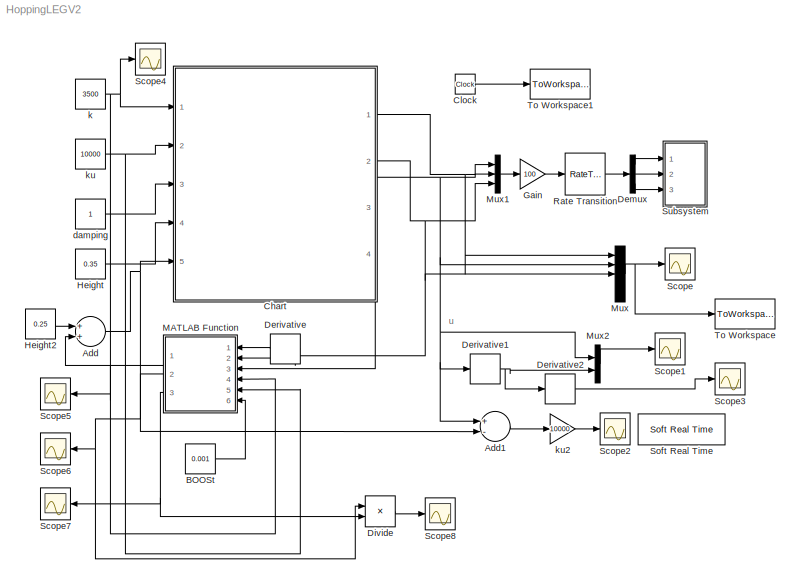
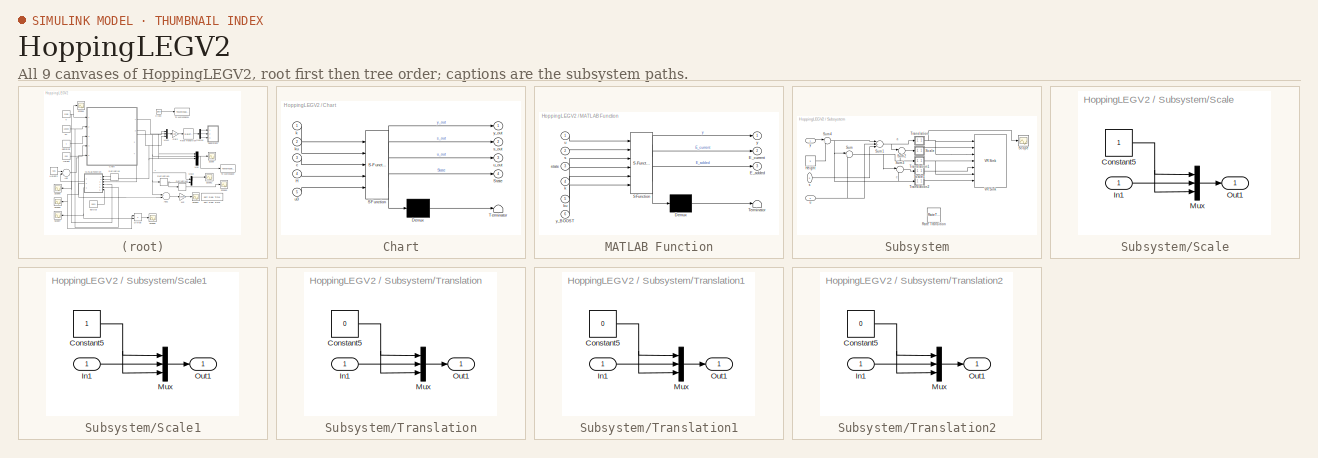
[diagram: thumbnail index - all 9 canvases of the model, root first then tree order]
MODEL HoppingLEGV2
KIND model
BLOCK [Sum] Add
  InputSameDT = off
  OutDataTypeStr = Inherit: Inherit via internal rule
  Ports = [2, 1]
  SID = 160
  SaturateOnIntegerOverflow = off
BLOCK [Sum] Add1
  InputSameDT = off
  Inputs = +-
  OutDataTypeStr = Inherit: Inherit via internal rule
  Ports = [2, 1]
  SID = 168
  SaturateOnIntegerOverflow = off
BLOCK [Constant] BOOSt
  SID = 181
  Value = 0.001
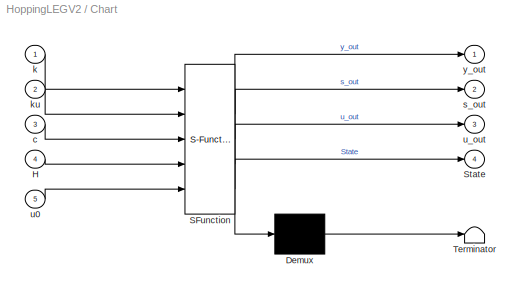
BLOCK [SubSystem] Chart
  ErrorFcn = Stateflow.Translate.translate
  FunctionWithSeparateData = off
  MaskDescription = Stateflow diagram
  MaskDisplay = plot(sf('Private','sfblk','xIcon'),sf('Private','sfblk','yIcon'));text(0.5,0,sf('Private', 'sfblk', 'tIcon'),'HorizontalAl','Center','VerticalAl','Bottom');
  MaskHideContents = off
  MaskIconFrame = off
  MaskIconOpaque = off
  MaskIconRotate = none
  MaskIconUnits = autoscale
  MaskPortRotate = default
  MaskSelfModifiable = on
  MaskType = Stateflow
  MinAlgLoopOccurrences = off
  Opaque = off
  PermitHierarchicalResolution = ExplicitOnly
  Ports = [5, 4]
  PropExecContextOutsideSubsystem = off
  RTWSystemCode = Auto
  RequestExecContextInheritance = off
  SID = 1
  TreatAsAtomicUnit = on
BLOCK [Demux] Chart/ Demux 
  Outputs = 1
  Ports = [1, 1]
  SID = 1::14
BLOCK [S-Function] Chart/ SFunction 
  EnableBusSupport = on
  FunctionName = sf_sfun
  PortCounts = [5 5]
  Ports = [5, 5]
  SID = 1::13
  Tag = Stateflow S-Function HoppingLEGV2 1
BLOCK [Terminator] Chart/ Terminator 
  SID = 1::18
BLOCK [Inport] Chart/H
  IconDisplay = Port number
  Port = 4
  SID = 1::28
BLOCK [Outport] Chart/State
  IconDisplay = Port number
  Port = 4
  SID = 1::30
BLOCK [Inport] Chart/c
  IconDisplay = Port number
  Port = 3
  SID = 1::27
BLOCK [Inport] Chart/k
  IconDisplay = Port number
  SID = 1::29
BLOCK [Inport] Chart/ku
  IconDisplay = Port number
  Port = 2
  SID = 1::36
BLOCK [Outport] Chart/s_out
  IconDisplay = Port number
  Port = 2
  SID = 1::31
BLOCK [Inport] Chart/u0
  IconDisplay = Port number
  Port = 5
  SID = 1::39
BLOCK [Outport] Chart/u_out
  IconDisplay = Port number
  Port = 3
  SID = 1::37
BLOCK [Outport] Chart/y_out
  IconDisplay = Port number
  SID = 1::20
BLOCK [Clock] Clock
  Decimation = 10
  SID = 14
BLOCK [Demux] Demux
  DisplayOption = bar
  Outputs = 3
  Ports = [1, 3]
  SID = 158
BLOCK [Derivative] Derivative
  SID = 152
BLOCK [Derivative] Derivative1
  SID = 163
BLOCK [Derivative] Derivative2
  SID = 174
BLOCK [Product] Divide
  InputSameDT = off
  Inputs = */
  OutDataTypeStr = Inherit: Inherit via internal rule
  Ports = [2, 1]
  RndMeth = Floor
  SID = 184
  SaturateOnIntegerOverflow = off
BLOCK [Gain] Gain
  Gain = 100
  OutDataTypeStr = Inherit: Inherit via internal rule
  ParamDataTypeStr = Inherit: Inherit via internal rule
  SID = 159
  SaturateOnIntegerOverflow = off
BLOCK [Constant] Height
  SID = 21
  Value = 0.35
BLOCK [Constant] Height2
  SID = 153
  Value = 0.25
BLOCK [SubSystem] MATLAB Function
  ErrorFcn = Stateflow.Translate.translate
  FunctionWithSeparateData = off
  MaskDescription = Embedded MATLAB block
  MaskDisplay = bgColor = Simulink.Root.ColorString2Rgb(get_param(gcbh, 'BackgroundColor')); image(imread('private/eml_membrane_16.png','png','BackgroundColor',bgColor(1:3)),'center'); disp([10 10 'fcn']);
  MaskHideContents = off
  MaskIconFrame = on
  MaskIconOpaque = off
  MaskIconRotate = none
  MaskIconUnits = normalized
  MaskPortRotate = default
  MaskSelfModifiable = on
  MaskType = Stateflow
  MinAlgLoopOccurrences = off
  Opaque = off
  PermitHierarchicalResolution = ExplicitOnly
  Ports = [6, 3]
  PropExecContextOutsideSubsystem = off
  RTWSystemCode = Auto
  RequestExecContextInheritance = off
  SID = 151
  TreatAsAtomicUnit = on
BLOCK [Demux] MATLAB Function/ Demux 
  Outputs = 1
  Ports = [1, 1]
  SID = 151::15
BLOCK [S-Function] MATLAB Function/ SFunction 
  EnableBusSupport = on
  FunctionName = sf_sfun
  PortCounts = [6 4]
  Ports = [6, 4]
  SID = 151::14
  Tag = Stateflow S-Function HoppingLEGV2 2
BLOCK [Terminator] MATLAB Function/ Terminator 
  SID = 151::17
BLOCK [Outport] MATLAB Function/E_added
  IconDisplay = Port number
  Port = 3
  SID = 151::21
BLOCK [Outport] MATLAB Function/E_current
  IconDisplay = Port number
  Port = 2
  SID = 151::19
BLOCK [Inport] MATLAB Function/k
  IconDisplay = Port number
  Port = 4
  SID = 151::22
BLOCK [Inport] MATLAB Function/ku
  IconDisplay = Port number
  Port = 5
  SID = 151::24
BLOCK [Inport] MATLAB Function/s
  IconDisplay = Port number
  Port = 2
  SID = 151::18
BLOCK [Inport] MATLAB Function/state
  IconDisplay = Port number
  Port = 3
  SID = 151::20
BLOCK [Inport] MATLAB Function/u
  IconDisplay = Port number
  SID = 151::1
BLOCK [Outport] MATLAB Function/y
  IconDisplay = Port number
  SID = 151::5
BLOCK [Inport] MATLAB Function/y_BOOST
  IconDisplay = Port number
  Port = 6
  SID = 151::23
BLOCK [Mux] Mux
  DisplayOption = bar
  Inputs = 5
  Ports = [5, 1]
  SID = 109
BLOCK [Mux] Mux1
  DisplayOption = bar
  Inputs = 3
  Ports = [3, 1]
  SID = 157
BLOCK [Mux] Mux2
  DisplayOption = bar
  Inputs = 2
  Ports = [2, 1]
  SID = 162
BLOCK [RateTransition] Rate Transition
  OutPortSampleTime = 1
  SID = 156
BLOCK [Scope] Scope
  DataFormat = StructureWithTime
  Floating = off
  NumInputPorts = 1
  Ports = [1]
  SID = 2
  SampleTime = 0
  TimeRange = 3
  YMax = 0.55
  YMin = 0
BLOCK [Scope] Scope1
  DataFormat = StructureWithTime
  Floating = off
  NumInputPorts = 1
  Ports = [1]
  SID = 82
  SampleTime = 0
  SaveName = ScopeData1
  TimeRange = 1.036496350364963
  YMax = 1.75
  YMin = -2
BLOCK [Scope] Scope2
  DataFormat = StructureWithTime
  Floating = off
  NumInputPorts = 1
  Ports = [1]
  SID = 173
  SampleTime = 0
  SaveName = ScopeData3
  TimeRange = 3
  YMax = 50
  YMin = -80
BLOCK [Scope] Scope3
  DataFormat = StructureWithTime
  Floating = off
  NumInputPorts = 1
  Ports = [1]
  SID = 175
  SampleTime = 0
  SaveName = ScopeData4
  TimeRange = 1.036496350364963
  YMax = 1.75
  YMin = -2
BLOCK [Scope] Scope4
  DataFormat = StructureWithTime
  Floating = off
  NumInputPorts = 1
  Ports = [1]
  SID = 177
  SampleTime = 0
  SaveName = ScopeData5
  TimeRange = 3
  YMax = 3000
  YMin = 2980
BLOCK [Scope] Scope5
  DataFormat = StructureWithTime
  Floating = off
  NumInputPorts = 1
  Ports = [1]
  SID = 180
  SampleTime = 0
  SaveName = ScopeData6
  TimeRange = 1.036496350364963
  YMax = 1.75
  YMin = -2
BLOCK [Scope] Scope6
  DataFormat = StructureWithTime
  Floating = off
  NumInputPorts = 1
  Ports = [1]
  SID = 182
  SampleTime = 0
  SaveName = ScopeData7
  TimeRange = 1.036496350364963
  YMax = 0.65
  YMin = 2.77556e-017
BLOCK [Scope] Scope7
  DataFormat = StructureWithTime
  Floating = off
  NumInputPorts = 1
  Ports = [1]
  SID = 183
  SampleTime = 0
  SaveName = ScopeData8
  TimeRange = 1.036496350364963
  YMax = 0.045
  YMin = 0.045
BLOCK [Scope] Scope8
  DataFormat = StructureWithTime
  Floating = off
  NumInputPorts = 1
  Ports = [1]
  SID = 185
  SampleTime = 0
  SaveName = ScopeData9
  TimeRange = 1.036496350364963
  YMax = 240
  YMin = 20
BLOCK [Reference] Soft Real Time  REF=utility/Soft Real Time  (lib defined in slx_8818c3a16fdf)
  Ports = []
  SID = 165
  SourceBlock = utility/Soft Real Time
  x = 1
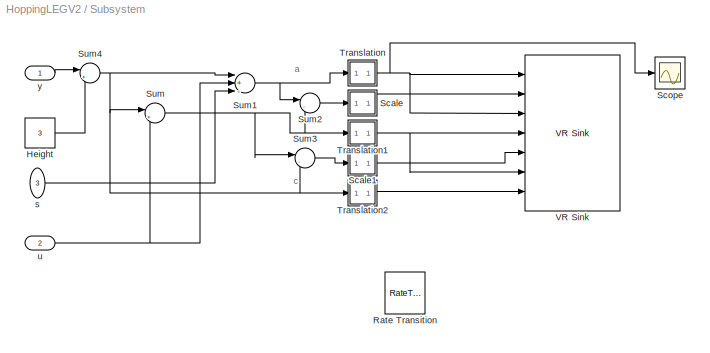
BLOCK [SubSystem] Subsystem
  FunctionWithSeparateData = off
  MaskHideContents = off
  MinAlgLoopOccurrences = off
  Opaque = off
  Ports = [3]
  PropExecContextOutsideSubsystem = off
  RTWSystemCode = Auto
  RequestExecContextInheritance = off
  SID = 112
BLOCK [Constant] Subsystem/Height
  SID = 149
  Value = 3
BLOCK [RateTransition] Subsystem/Rate Transition
  OutPortSampleTime = 0.1
  SID = 155
BLOCK [SubSystem] Subsystem/Scale
  FunctionWithSeparateData = off
  MaskHideContents = off
  MinAlgLoopOccurrences = off
  Opaque = off
  Ports = [1, 1]
  PropExecContextOutsideSubsystem = off
  RTWSystemCode = Auto
  RequestExecContextInheritance = off
  SID = 116
BLOCK [Constant] Subsystem/Scale/Constant5
  SID = 118
BLOCK [Inport] Subsystem/Scale/In1
  IconDisplay = Port number
  SID = 117
BLOCK [Mux] Subsystem/Scale/Mux
  DisplayOption = bar
  Inputs = 3
  Ports = [3, 1]
  SID = 119
BLOCK [Outport] Subsystem/Scale/Out1
  IconDisplay = Port number
  SID = 120
BLOCK [SubSystem] Subsystem/Scale1
  FunctionWithSeparateData = off
  MaskHideContents = off
  MinAlgLoopOccurrences = off
  Opaque = off
  Ports = [1, 1]
  PropExecContextOutsideSubsystem = off
  RTWSystemCode = Auto
  RequestExecContextInheritance = off
  SID = 121
BLOCK [Constant] Subsystem/Scale1/Constant5
  SID = 123
BLOCK [Inport] Subsystem/Scale1/In1
  IconDisplay = Port number
  SID = 122
BLOCK [Mux] Subsystem/Scale1/Mux
  DisplayOption = bar
  Inputs = 3
  Ports = [3, 1]
  SID = 124
BLOCK [Outport] Subsystem/Scale1/Out1
  IconDisplay = Port number
  SID = 125
BLOCK [Scope] Subsystem/Scope
  DataFormat = StructureWithTime
  Floating = off
  NumInputPorts = 1
  Ports = [1]
  SID = 147
  SampleTime = 0
  SaveName = ScopeData2
  TimeRange = 3
  YMax = 4e-015
  YMin = -4e-015
BLOCK [Sum] Subsystem/Sum
  IconShape = round
  InputSameDT = off
  Inputs = |+-
  OutDataTypeStr = Inherit: Inherit via internal rule
  Ports = [2, 1]
  SID = 126
  SaturateOnIntegerOverflow = off
BLOCK [Sum] Subsystem/Sum1
  InputSameDT = off
  Inputs = |+--
  OutDataTypeStr = Inherit: Inherit via internal rule
  Ports = [3, 1]
  SID = 127
  SaturateOnIntegerOverflow = off
BLOCK [Sum] Subsystem/Sum2
  IconShape = round
  InputSameDT = off
  Inputs = |-+
  OutDataTypeStr = Inherit: Inherit via internal rule
  Ports = [2, 1]
  SID = 128
  SaturateOnIntegerOverflow = off
BLOCK [Sum] Subsystem/Sum3
  IconShape = round
  InputSameDT = off
  Inputs = |-+
  OutDataTypeStr = Inherit: Inherit via internal rule
  Ports = [2, 1]
  SID = 129
  SaturateOnIntegerOverflow = off
BLOCK [Sum] Subsystem/Sum4
  IconShape = round
  InputSameDT = off
  Inputs = |++
  OutDataTypeStr = Inherit: Inherit via internal rule
  Ports = [2, 1]
  SID = 148
  SaturateOnIntegerOverflow = off
BLOCK [SubSystem] Subsystem/Translation
  FunctionWithSeparateData = off
  MaskHideContents = off
  MinAlgLoopOccurrences = off
  Opaque = off
  Ports = [1, 1]
  PropExecContextOutsideSubsystem = off
  RTWSystemCode = Auto
  RequestExecContextInheritance = off
  SID = 130
BLOCK [Constant] Subsystem/Translation/Constant5
  SID = 132
  Value = 0
BLOCK [Inport] Subsystem/Translation/In1
  IconDisplay = Port number
  SID = 131
BLOCK [Mux] Subsystem/Translation/Mux
  DisplayOption = bar
  Inputs = 3
  Ports = [3, 1]
  SID = 133
BLOCK [Outport] Subsystem/Translation/Out1
  IconDisplay = Port number
  SID = 134
BLOCK [SubSystem] Subsystem/Translation1
  FunctionWithSeparateData = off
  MaskHideContents = off
  MinAlgLoopOccurrences = off
  Opaque = off
  Ports = [1, 1]
  PropExecContextOutsideSubsystem = off
  RTWSystemCode = Auto
  RequestExecContextInheritance = off
  SID = 135
BLOCK [Constant] Subsystem/Translation1/Constant5
  SID = 137
  Value = 0
BLOCK [Inport] Subsystem/Translation1/In1
  IconDisplay = Port number
  SID = 136
BLOCK [Mux] Subsystem/Translation1/Mux
  DisplayOption = bar
  Inputs = 3
  Ports = [3, 1]
  SID = 138
BLOCK [Outport] Subsystem/Translation1/Out1
  IconDisplay = Port number
  SID = 139
BLOCK [SubSystem] Subsystem/Translation2
  FunctionWithSeparateData = off
  MaskHideContents = off
  MinAlgLoopOccurrences = off
  Opaque = off
  Ports = [1, 1]
  PropExecContextOutsideSubsystem = off
  RTWSystemCode = Auto
  RequestExecContextInheritance = off
  SID = 140
BLOCK [Constant] Subsystem/Translation2/Constant5
  SID = 142
  Value = 0
BLOCK [Inport] Subsystem/Translation2/In1
  IconDisplay = Port number
  SID = 141
BLOCK [Mux] Subsystem/Translation2/Mux
  DisplayOption = bar
  Inputs = 3
  Ports = [3, 1]
  SID = 143
BLOCK [Outport] Subsystem/Translation2/Out1
  IconDisplay = Port number
  SID = 144
BLOCK [Reference] Subsystem/VR Sink  REF=vrlib/VR Sink
  AutoView = off
  FieldsWritten = ALFA.translation.3.1.1.double#Opruga.scale.3.1.1.double#Opruga.translation.3.1.1.double#MASS2.translation.3.1.1.double#PRISMATIC.scale.3.1.1.double#PRISMATIC.translation.3.1.1.double#MASS1.translation.3.1.1.double
  FigureProperties = {'Position', 'Name', 'Viewpoint', 'CameraBound', 'CameraDirection', 'CameraPosition', 'CameraUpVector', 'ZoomFactor', 'Antialiasing', 'Headlight', 'Lighting', 'NavPanel', 'StatusBar', 'ToolBar', 'Textures', 'Transparency', 'Wireframe', 'NavZones', 'NavMode', 'NavSpeed', 'Record2DCompressMethod', 'Record2DCompressQuality', 'Record2D', 'Record2DFileName', 'Record2DFPS'; [5.0000000000000000e+000  9.2...<+515ch>
  Ports = [7]
  RemoteChange = off
  RemoteView = on
  SID = 145
  SampleTime = 1
  SourceBlock = vrlib/VR Sink
  SourceType = Virtual Reality Sink
  VideoDimensions = []
  ViewEnable = on
  WorldFileName = skakac2.WRL
BLOCK [Inport] Subsystem/s
  IconDisplay = Port number
  Port = 3
  SID = 115
BLOCK [Inport] Subsystem/u
  IconDisplay = Port number
  Port = 2
  SID = 114
BLOCK [Inport] Subsystem/y
  IconDisplay = Port number
  SID = 113
BLOCK [ToWorkspace] To Workspace
  MaxDataPoints = inf
  Ports = [1]
  SID = 178
  SampleTime = Td
  SaveFormat = Array
  VariableName = output
BLOCK [ToWorkspace] To Workspace1
  MaxDataPoints = inf
  Ports = [1]
  SID = 15
  SampleTime = Td
  SaveFormat = Array
  VariableName = t
BLOCK [Constant] damping
  SID = 20
BLOCK [Constant] k
  SID = 179
  Value = 3500
BLOCK [Constant] ku
  SID = 83
  Value = 10000
BLOCK [Gain] ku2
  Gain = 10000
  OutDataTypeStr = Inherit: Inherit via internal rule
  ParamDataTypeStr = Inherit: Inherit via internal rule
  SID = 169
  SaturateOnIntegerOverflow = off
ANNOTATION (root): u
ANNOTATION Subsystem: a
ANNOTATION Subsystem: c
LINE Add1:1 -> ku2:1
NET Add:1 -> Add1:2, Chart:5
LINE BOOSt:1 -> MATLAB Function:6
LINE Chart/ Demux :1 -> Chart/ Terminator :1
LINE Chart/ SFunction :1 -> Chart/ Demux :1
LINE Chart/ SFunction :2 -> Chart/y_out:1
LINE Chart/ SFunction :3 -> Chart/s_out:1
LINE Chart/ SFunction :4 -> Chart/u_out:1
LINE Chart/ SFunction :5 -> Chart/State:1
LINE Chart/H:1 -> Chart/ SFunction :4
LINE Chart/c:1 -> Chart/ SFunction :3
LINE Chart/k:1 -> Chart/ SFunction :1
LINE Chart/ku:1 -> Chart/ SFunction :2
LINE Chart/u0:1 -> Chart/ SFunction :5
NET Chart:1 -> Mux1:1, Mux:1
NET Chart:2 -> Derivative:1, MATLAB Function:2, Mux1:3, Mux:3
NET Chart:3 -> Add1:1, Derivative1:1, Mux1:2, Mux2:1, Mux:2
LINE Chart:4 -> MATLAB Function:3
LINE Clock:1 -> To Workspace1:1
LINE Demux:1 -> Subsystem:1
LINE Demux:2 -> Subsystem:2
LINE Demux:3 -> Subsystem:3
NET Derivative1:1 -> Derivative2:1, Mux2:2
LINE Derivative2:1 -> Scope3:1
LINE Derivative:1 -> MATLAB Function:1
LINE Divide:1 -> Scope8:1
LINE Gain:1 -> Rate Transition:1
LINE Height2:1 -> Add:1
LINE Height:1 -> Chart:4
LINE MATLAB Function/ Demux :1 -> MATLAB Function/ Terminator :1
LINE MATLAB Function/ SFunction :1 -> MATLAB Function/ Demux :1
LINE MATLAB Function/ SFunction :2 -> MATLAB Function/y:1
LINE MATLAB Function/ SFunction :3 -> MATLAB Function/E_current:1
LINE MATLAB Function/ SFunction :4 -> MATLAB Function/E_added:1
LINE MATLAB Function/k:1 -> MATLAB Function/ SFunction :4
LINE MATLAB Function/ku:1 -> MATLAB Function/ SFunction :5
LINE MATLAB Function/s:1 -> MATLAB Function/ SFunction :2
LINE MATLAB Function/state:1 -> MATLAB Function/ SFunction :3
LINE MATLAB Function/u:1 -> MATLAB Function/ SFunction :1
LINE MATLAB Function/y_BOOST:1 -> MATLAB Function/ SFunction :6
NET MATLAB Function:1 -> Add:2, Scope5:1
NET MATLAB Function:2 -> Divide:1, Scope6:1
NET MATLAB Function:3 -> Divide:2, Scope7:1
LINE Mux1:1 -> Gain:1
LINE Mux2:1 -> Scope1:1
NET Mux:1 -> Scope:1, To Workspace:1
LINE Rate Transition:1 -> Demux:1
LINE Subsystem/Height:1 -> Subsystem/Sum4:2
NET Subsystem/Scale/Constant5:1 -> Subsystem/Scale/Mux:1, Subsystem/Scale/Mux:3
LINE Subsystem/Scale/In1:1 -> Subsystem/Scale/Mux:2
LINE Subsystem/Scale/Mux:1 -> Subsystem/Scale/Out1:1
NET Subsystem/Scale1/Constant5:1 -> Subsystem/Scale1/Mux:1, Subsystem/Scale1/Mux:3
LINE Subsystem/Scale1/In1:1 -> Subsystem/Scale1/Mux:2
LINE Subsystem/Scale1/Mux:1 -> Subsystem/Scale1/Out1:1
LINE Subsystem/Scale1:1 -> Subsystem/VR Sink:5
LINE Subsystem/Scale:1 -> Subsystem/VR Sink:2
NET Subsystem/Sum1:1 -> Subsystem/Sum2:1, Subsystem/Translation:1
LINE Subsystem/Sum2:1 -> Subsystem/Scale:1
LINE Subsystem/Sum3:1 -> Subsystem/Scale1:1
NET Subsystem/Sum4:1 -> Subsystem/Sum1:1, Subsystem/Sum3:2, Subsystem/Sum:1, Subsystem/Translation2:1
NET Subsystem/Sum:1 -> Subsystem/Sum2:2, Subsystem/Sum3:1, Subsystem/Translation1:1
NET Subsystem/Translation/Constant5:1 -> Subsystem/Translation/Mux:1, Subsystem/Translation/Mux:3
LINE Subsystem/Translation/In1:1 -> Subsystem/Translation/Mux:2
LINE Subsystem/Translation/Mux:1 -> Subsystem/Translation/Out1:1
NET Subsystem/Translation1/Constant5:1 -> Subsystem/Translation1/Mux:1, Subsystem/Translation1/Mux:3
LINE Subsystem/Translation1/In1:1 -> Subsystem/Translation1/Mux:2
LINE Subsystem/Translation1/Mux:1 -> Subsystem/Translation1/Out1:1
NET Subsystem/Translation1:1 -> Subsystem/VR Sink:4, Subsystem/VR Sink:6
NET Subsystem/Translation2/Constant5:1 -> Subsystem/Translation2/Mux:1, Subsystem/Translation2/Mux:3
LINE Subsystem/Translation2/In1:1 -> Subsystem/Translation2/Mux:2
LINE Subsystem/Translation2/Mux:1 -> Subsystem/Translation2/Out1:1
LINE Subsystem/Translation2:1 -> Subsystem/VR Sink:7
NET Subsystem/Translation:1 -> Subsystem/Scope:1, Subsystem/VR Sink:1, Subsystem/VR Sink:3
LINE Subsystem/s:1 -> Subsystem/Sum1:3
NET Subsystem/u:1 -> Subsystem/Sum1:2, Subsystem/Sum:2
LINE Subsystem/y:1 -> Subsystem/Sum4:1
LINE damping:1 -> Chart:3
NET k:1 -> Chart:1, MATLAB Function:4, Scope4:1
LINE ku2:1 -> Scope2:1
NET ku:1 -> Chart:2, MATLAB Function:5
note: NET lines group one-source signal fan-out (src -> all destinations, sorted); 1:1 wires keep LINE
CHART Chart states=2 transitions=3
  STATE_LABEL 'Swing\\ndu:\\ny_dot=yv;\\nyv_dot=-u*(ku/m1)-g+ku*u0/m1;\\nu_dot=uv;\\nuv_dot=-u*(ku/m1+ku/m2)+ku*u0/m1+ku*u0/m2;\\n//output\\ny_out = y;\\ns_out=s0;\\nu_out=u;\\nState=1;'
  STATE_LABEL 'Stancedown\\ndu:\\ny_dot = yv;\\nyv_dot = ku/m1*(u0-u) -g;\\nu_dot=uv;\\nuv_dot=k/m2*y+yv*c/m2-u*(ku/m1+k/m2+ku/m2)-uv*c/m2 -k*s0/m2+ku*u0/m1+ku*u0/m2;\\ny_out = y;\\ns_out=y-u;\\nu_out=u;\\nState = 0;'
CHART MATLAB Function states=1 transitions=1
  STATE_LABEL 'eML_blk_kernel()'
